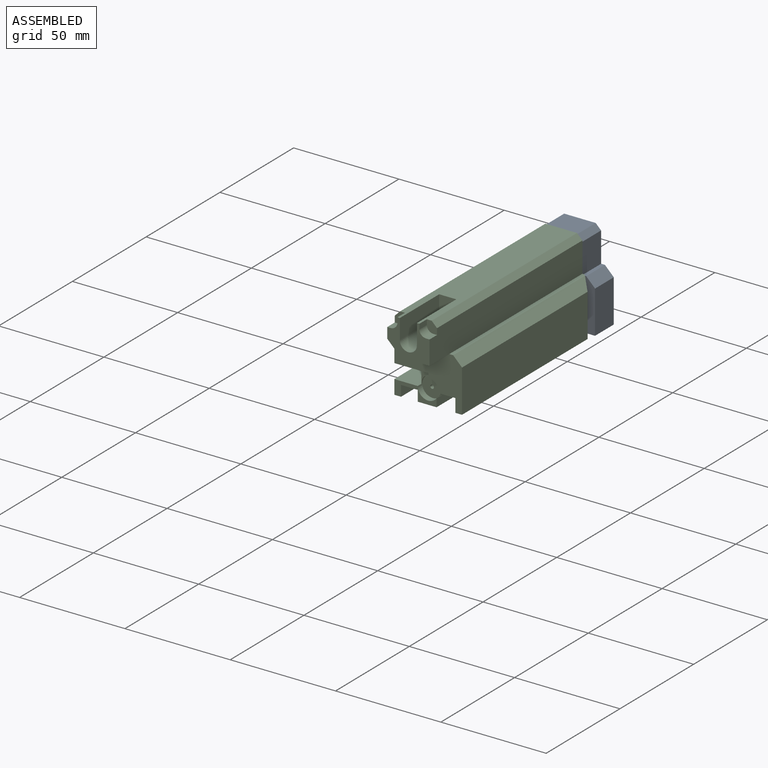
[diagram: assembled view]
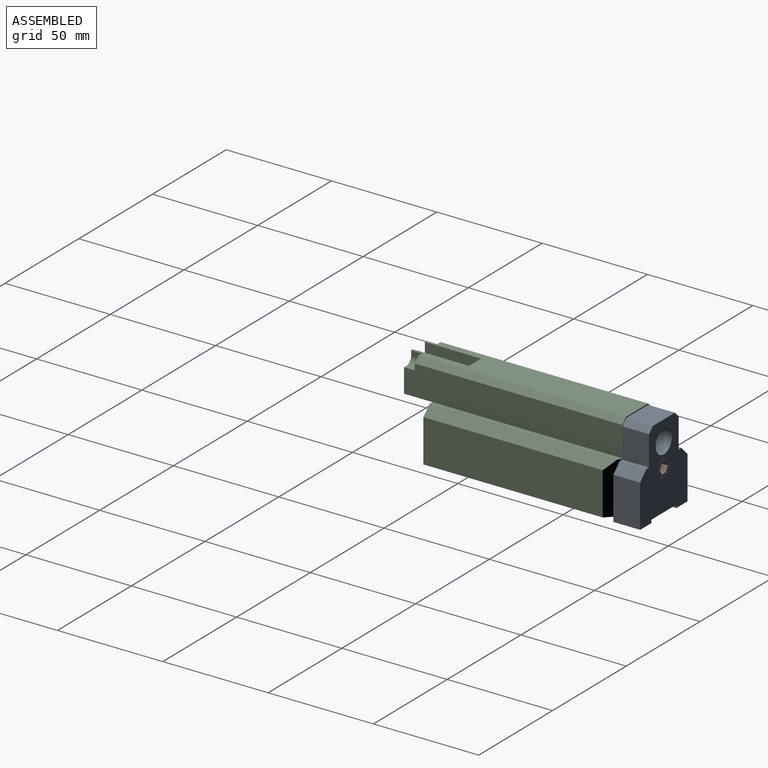
[diagram: assembled view, second angle]
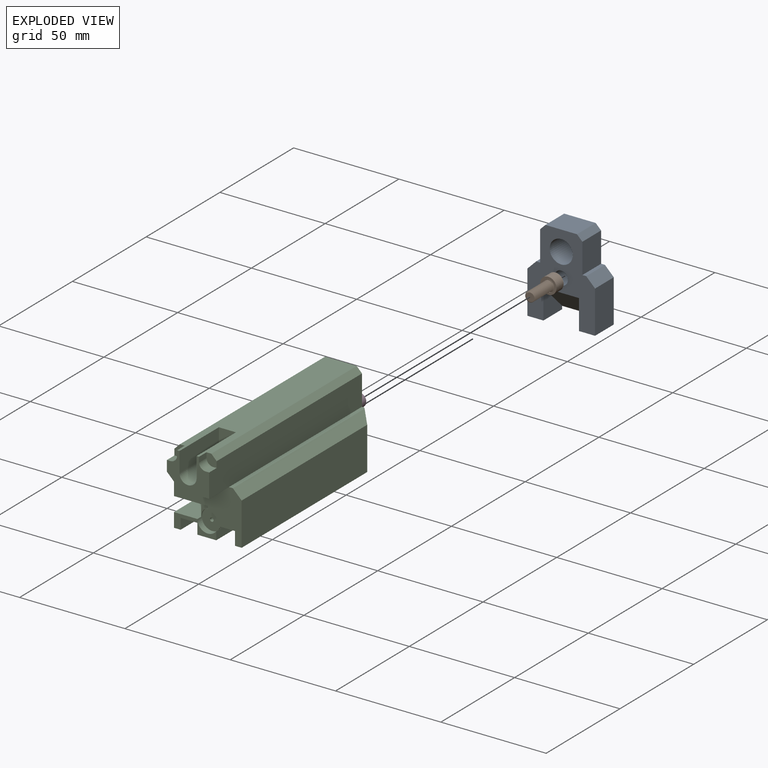
[diagram: exploded view]
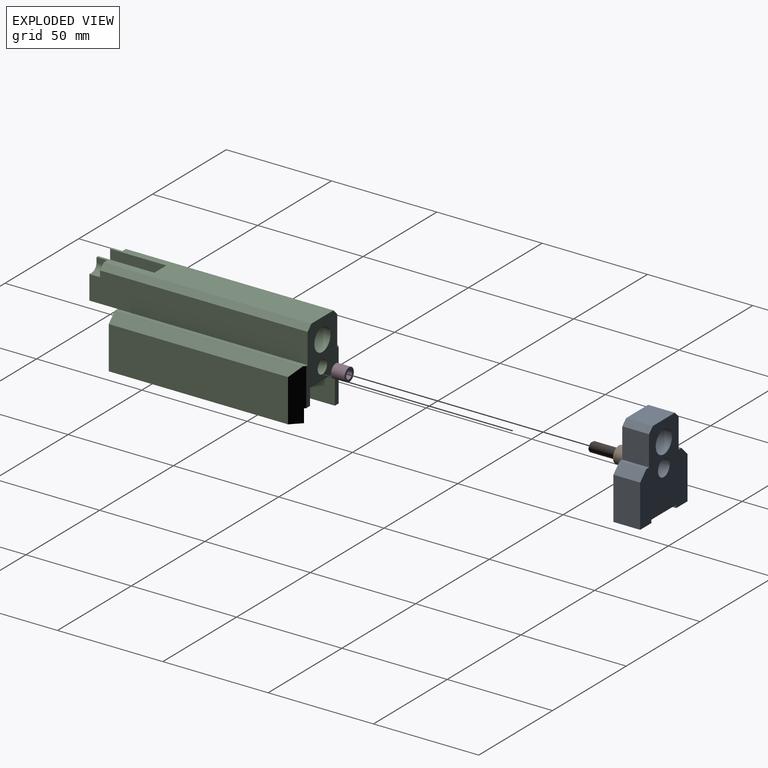
[diagram: exploded view, second angle]
ASSEMBLY  parts=4 mates=5
PART A: 22 faces, bbox 32.1x12.7x41.3 mm
  f0: plane 41.28x32.13mm, normal (0,1,0), area 931.7mm2, adj f1,f2,f3,f4,f5,f6,f7,f8
  f1: plane 12.7x7.62mm, normal (0,0,-1), area 96.8mm2, adj f0,f4,f15,f18
  f2: plane 12.7x7.62mm, normal (0,0,-1), area 96.8mm2, adj f0,f3,f15,f19
  f3: plane 20.27x12.7mm, normal (1,0,0), area 257.4mm2, adj f0,f2,f13,f15
  f4: plane 20.27x12.7mm, normal (-1,0,0), area 257.4mm2, adj f0,f1,f5,f15
  f5: plane 12.7x4.19mm, normal (-0.71,0,0.71), area 75.3mm2, adj f0,f4,f6,f15
  f6: plane 12.7x1.84mm, normal (0,0,1), area 23.4mm2, adj f0,f5,f7,f15
  f7: plane 14.28x12.7mm, normal (-1,0,0), area 181.3mm2, adj f0,f6,f8,f15
  f8: plane 12.7x2.54mm, normal (-0.71,0,0.71), area 45.6mm2, adj f0,f7,f9,f15
  f9: plane 14.99x12.7mm, normal (0,0,1), area 190.3mm2, adj f0,f8,f10,f15
  f10: plane 12.7x2.54mm, normal (0.71,0,0.71), area 45.6mm2, adj f0,f9,f11,f15
  f11: plane 14.28x12.7mm, normal (1,0,0), area 181.3mm2, adj f0,f10,f12,f15
  f12: plane 12.7x1.84mm, normal (0,0,1), area 23.4mm2, adj f0,f11,f13,f15
  f13: plane 12.7x4.19mm, normal (0.71,0,0.71), area 75.3mm2, adj f0,f3,f12,f15
  f14: cylinder r=5.46mm len=12.7mm, axis (0,-1,0), area 435.8mm2, adj f0,f15
  f15: plane 41.28x32.13mm, normal (0,-1,0), area 735mm2, adj f1,f2,f3,f4,f5,f6,f7,f8
  f16: plane 7.94x7.94mm, normal (0,1,0), area 17.8mm2, adj f17,f21
  f17: cylinder r=3.97mm len=7.94mm, axis (0,1,0), area 120.3mm2, adj f0,f16
  f18: plane 14.15x12.7mm, normal (1,0,0), area 99mm2, adj f0,f1,f15,f20
  f19: plane 14.15x12.7mm, normal (-1,0,0), area 99mm2, adj f0,f2,f15,f20
  f20: plane 16.89x12.7mm, normal (0,-0.71,-0.71), area 303.4mm2, adj f0,f15,f18,f19
  f21: cylinder r=3.17mm len=7.87mm, axis (0,1,0), area 157.1mm2, adj f15,f16
PART B: 17 faces, bbox 8.3x18.6x8.3 mm
  f0: bspline ~13.23x5.44mm, area 158.5mm2, adj f1,f6,f16
  f1: bspline ~13.63x5.44mm, area 163mm2, adj f0,f6,f8,f16
  f2: plane 7.75x7.75mm, normal (0,1,0), area 27.5mm2, adj f3,f9,f10,f11,f12,f13,f14
  f3: cylinder r=3.87mm len=7.75mm, axis (0,1,0), area 117.5mm2, adj f2,f4
  f4: plane 7.75x7.75mm, normal (0,-1,0), area 25mm2, adj f3,f5,f6,f7,f8
  f5: cylinder r=2.4mm len=4.74mm, axis (0,1,0), area 1.3mm2, adj f4,f6,f8
  f6: plane 1.1x1.03mm, normal (0,0,-1), area 0.5mm2, adj f0,f1,f4,f5,f7,f8
  f7: cylinder r=2.77mm len=5.53mm, axis (0,1,0), area 4.4mm2, adj f4,f6,f8
  f8: bspline ~6.39x5.53mm, area 5.4mm2, adj f1,f4,f5,f6,f7
  f9: plane 3.81x2.38mm, normal (-0.87,0,-0.5), area 10.5mm2, adj f2,f10,f14,f15
  f10: plane 3.81x2.38mm, normal (-0.87,0,0.5), area 10.5mm2, adj f2,f9,f11,f15
  f11: plane 3.81x2.75mm, normal (0,0,1), area 10.5mm2, adj f2,f10,f12,f15
  f12: plane 3.81x2.38mm, normal (0.87,0,0.5), area 10.5mm2, adj f2,f11,f13,f15
  f13: plane 3.81x2.38mm, normal (0.87,0,-0.5), area 10.5mm2, adj f2,f12,f14,f15
  f14: plane 3.81x2.75mm, normal (0,0,-1), area 10.5mm2, adj f2,f9,f13,f15
  f15: plane 5.5x4.76mm, normal (0,1,0), area 19.6mm2, adj f9,f10,f11,f12,f13,f14
  f16: plane 4.6x4.59mm, normal (0,-1,0), area 12.8mm2, adj f0,f1
PART C: 69 faces, bbox 32.1x103.6x41.3 mm
  f0: plane 103.63x14.99mm, normal (0,0,1), area 1313.1mm2, adj f1,f3,f4,f10,f26,f27,f28,f59
  f1: plane 20.07x16.82mm, normal (0,-1,0), area 165.5mm2, adj f0,f2,f8,f18,f25,f26,f27,f58
  f2: plane 103.63x14.28mm, normal (-1,0,0), area 1379.3mm2, adj f1,f4,f10,f12,f19,f60,f61,f66
  f3: plane 98.55x2.54mm, normal (0.71,0,0.71), area 354mm2, adj f0,f10,f18,f65
  f4: plane 98.55x2.54mm, normal (-0.71,0,0.71), area 354mm2, adj f0,f2,f10,f61
  f5: plane 65.11x6.35mm, normal (1,0,0), area 406.5mm2, adj f6,f7,f9,f13,f16,f50,f54,f55
  f6: plane 9.27x9.27mm, normal (0,-1,0), area 64.4mm2, adj f5,f7,f11,f55
  f7: plane 90.22x8.89mm, normal (0,0,-1), area 636mm2, adj f5,f6,f10,f12,f20,f29,f35,f43
  f8: cylinder r=4.06mm len=40.13mm, axis (0,-1,0), area 688.9mm2, adj f1,f26,f27,f28,f51
  f9: plane 90.22x20.07mm, normal (0,0,-1), area 1136.2mm2, adj f5,f10,f13,f14,f36,f37,f38,f39
  f10: plane 41.28x21.97mm, normal (0,1,0), area 487.9mm2, adj f0,f2,f3,f4,f7,f9,f17,f18
  f11: cylinder r=0.85mm len=62.15mm, axis (0,-1,0), area 332.3mm2, adj f6,f46
  f12: plane 32.13x30.81mm, normal (0,-1,0), area 466.8mm2, adj f2,f7,f14,f17,f19,f21,f22,f23
  f13: plane 20.07x6.73mm, normal (0,-1,0), area 58.2mm2, adj f5,f9,f14,f16,f30,f38,f39,f40
  f14: plane 85.14x20.27mm, normal (-1,0,0), area 1507.2mm2, adj f9,f12,f13,f24,f30,f32,f34,f36
  f15: plane 6.88x5.08mm, normal (0,-1,0), area 15.5mm2, adj f30,f31,f32,f33,f54
  f16: cylinder r=4.95mm len=8.95mm, axis (0,-1,0), area 33.2mm2, adj f5,f13,f30,f57
  f17: plane 90.22x1.84mm, normal (0,0,1), area 165.7mm2, adj f10,f12,f18,f23,f35
  f18: plane 103.63x14.28mm, normal (1,0,0), area 1464.5mm2, adj f1,f3,f10,f17,f25,f62,f65
  f19: plane 90.22x1.84mm, normal (0,0,1), area 165.7mm2, adj f2,f10,f12,f24,f36
  f20: plane 44.88x6.35mm, normal (-1,0,0), area 285mm2, adj f7,f21,f35,f44
  f21: plane 89.59x4.45mm, normal (0,0,-1), area 332.5mm2, adj f12,f20,f22,f35,f43,f44
  f22: plane 85.14x20.27mm, normal (1,0,0), area 1725.7mm2, adj f12,f21,f23,f35
  f23: plane 89.33x4.19mm, normal (0.71,0,0.71), area 517mm2, adj f12,f17,f22,f35
  f24: plane 89.33x4.19mm, normal (-0.71,0,0.71), area 517mm2, adj f12,f14,f19,f36
  f25: plane 13.72x13.41mm, normal (0,0,-1), area 183.9mm2, adj f1,f12,f18,f66
  f26: plane 26.67x9.43mm, normal (-1,0,0), area 251.5mm2, adj f0,f1,f8,f28
  f27: plane 26.67x9.45mm, normal (1,0,0), area 251.9mm2, adj f0,f1,f8,f28
  f28: plane 9.45x8.13mm, normal (0,-1,0), area 51.5mm2, adj f0,f8,f26,f27
  f29: cylinder r=4.95mm len=5.33mm, axis (0,-1,0), area 21.7mm2, adj f7,f12,f31,f53
  f30: plane 31.75x11.11mm, normal (0,0,1), area 349.5mm2, adj f13,f14,f15,f16,f33,f34,f57
  f31: plane 2.67x1.93mm, normal (-1,0,0), area 5.1mm2, adj f12,f15,f29,f32,f53
  f32: plane 31.75x16.08mm, normal (0,0,-1), area 362.7mm2, adj f12,f14,f15,f31,f33,f34
  f33: plane 29.08x6.88mm, normal (-1,0,0), area 200.2mm2, adj f15,f30,f32,f34
  f34: plane 11x6.88mm, normal (0,-1,0), area 75.7mm2, adj f14,f30,f32,f33
  f35: plane 24.46x5.08mm, normal (0.71,0.71,0), area 157.6mm2, adj f7,f10,f17,f20,f21,f22,f23
  f36: plane 24.46x5.08mm, normal (-0.71,0.71,0), area 163.3mm2, adj f9,f10,f14,f19,f24
  f37: plane 5.08x1.57mm, normal (0,-1,0), area 8mm2, adj f9,f40,f41,f42
  f38: plane 42.04x5.08mm, normal (-1,0,0), area 213.5mm2, adj f9,f13,f40,f41
  f39: plane 42.04x5.08mm, normal (1,0,0), area 213.5mm2, adj f9,f13,f40,f42
  f40: plane 45.21x7.93mm, normal (0,0,-1), area 354mm2, adj f13,f37,f38,f39,f41,f42
  f41: cylinder r=3.17mm len=5.08mm, axis (0,0,1), area 25.3mm2, adj f9,f37,f38,f40
  f42: cylinder r=3.17mm len=5.08mm, axis (0,0,1), area 25.3mm2, adj f9,f37,f39,f40
  f43: plane 42.16x6.35mm, normal (-1,0,0), area 267.7mm2, adj f7,f12,f21,f44
  f44: cylinder r=3.17mm len=6.35mm, axis (0,0,-1), area 18.7mm2, adj f7,f20,f21,f43
  f45: plane 19.05x14.15mm, normal (1,0,0), area 269.5mm2, adj f9,f10,f47,f49
  f46: plane 14.15x4.19mm, normal (0,1,0), area 57mm2, adj f9,f11,f47,f49,f50
  f47: plane 25.4x16.89mm, normal (0,0,-1), area 411.7mm2, adj f10,f45,f46,f48,f49,f50
  f48: plane 19.05x7.8mm, normal (-1,0,0), area 148.5mm2, adj f7,f10,f47,f50
  f49: cylinder r=6.35mm len=14.15mm, axis (0,0,1), area 141.1mm2, adj f9,f45,f46,f47
  f50: cylinder r=6.35mm len=14.15mm, axis (0,0,-1), area 90.1mm2, adj f5,f7,f9,f46,f47,f48
  f51: plane 10.92x10.92mm, normal (0,1,0), area 41.8mm2, adj f8,f52
  f52: cylinder r=5.46mm len=63.5mm, axis (0,1,0), area 2178.8mm2, adj f10,f51
  f53: plane 5.36x4.98mm, normal (0,1,0), area 0.3mm2, adj f7,f29,f31,f54
  f54: cylinder r=4.98mm len=9.96mm, axis (0,-1,0), area 10.8mm2, adj f5,f7,f15,f53,f56,f57
  f55: cylinder r=4.64mm len=9.27mm, axis (0,-1,0), area 10.3mm2, adj f5,f6,f7,f56
  f56: plane 9.96x9.96mm, normal (0,-1,0), area 9.5mm2, adj f5,f7,f54,f55
  f57: plane 8.97x4.98mm, normal (0,1,0), area 0.3mm2, adj f5,f16,f30,f54
  f58: cylinder r=3.17mm len=5.08mm, axis (0,-1,0), area 24mm2, adj f1,f59,f60,f61
  f59: plane 5.08x2.54mm, normal (-1,0,0), area 12.9mm2, adj f0,f1,f58,f61
  f60: plane 5.08x1.66mm, normal (0,0,1), area 8.4mm2, adj f1,f2,f58,f61
  f61: plane 5.46x4.83mm, normal (0,-1,0), area 21mm2, adj f0,f2,f4,f58,f59,f60
  f62: plane 5.08x1.66mm, normal (0,0,1), area 8.4mm2, adj f1,f18,f64,f65
  f63: plane 5.08x2.54mm, normal (1,0,0), area 12.9mm2, adj f0,f1,f64,f65
  f64: cylinder r=3.17mm len=5.08mm, axis (0,-1,0), area 24mm2, adj f1,f62,f63,f65
  f65: plane 5.46x4.83mm, normal (0,-1,0), area 21mm2, adj f0,f3,f18,f62,f63,f64
  f66: plane 13.41x6.35mm, normal (-0.71,0,-0.71), area 120.4mm2, adj f1,f2,f12,f25
  f67: cylinder r=3.17mm len=6.35mm, axis (0,1,0), area 126.7mm2, adj f10,f68
  f68: plane 6.35x6.35mm, normal (0,1,0), area 31.7mm2, adj f67
PART D: 4 faces, bbox 6.4x6.4x6.4 mm
  f0: cylinder r=3.17mm len=6.35mm, axis (0,1,0), area 126.7mm2, adj f1,f2
  f1: plane 6.35x6.35mm, normal (0,-1,0), area 18.9mm2, adj f0,f3
  f2: plane 6.35x6.35mm, normal (0,1,0), area 18.9mm2, adj f0,f3
  f3: cylinder r=2.02mm len=6.35mm, axis (0,1,0), area 80.6mm2, adj f1,f2
PLACE A t=(-84.53,22.22,-34.75)mm
PLACE B t=(-68.46,34.92,-14.25)mm
PLACE C t=(-84.53,22.22,-34.19)mm fixed
PLACE D rot(axis=(0,1,0),90deg) t=(-88.4,22.22,1.81)mm
MATE cylindrical D.f0 <-> C.f67  axis (0,1,0) through (-68.46,22.22,-14.25)mm
MATE planar B.f4 <-> A.f17  axis (0,-1,0) through (-68.54,30.1,-14.11)mm
MATE planar D.f0 <-> C.f67  axis (0,-1,0) through (-68.46,15.87,-14.25)mm
MATE cylindrical B.f3 <-> A.f17  axis (0,1,0) through (-68.46,30.1,-14.25)mm
MATE cylindrical A.f17 <-> C.f67  axis (0,1,0) through (-68.46,34.92,-14.25)mm
